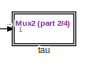
[diagram: root canvas - part 1/4, top right region]
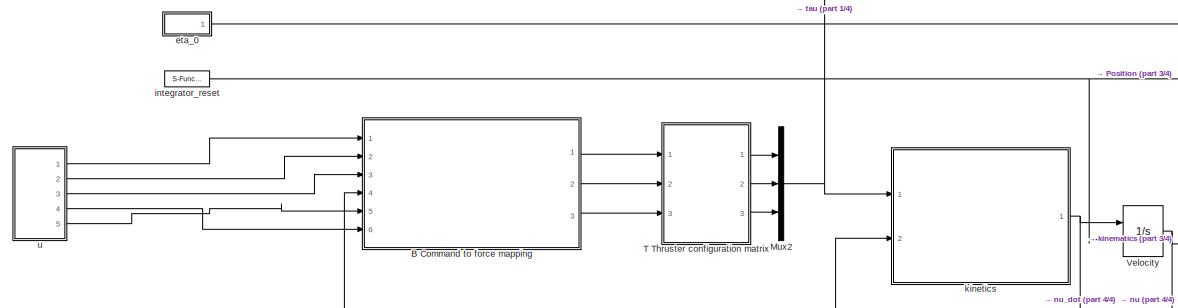
[diagram: root canvas - part 2/4, middle left region]
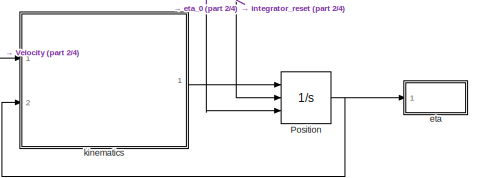
[diagram: root canvas - part 3/4, middle right region]
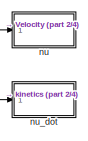
[diagram: root canvas - part 4/4, bottom right region]
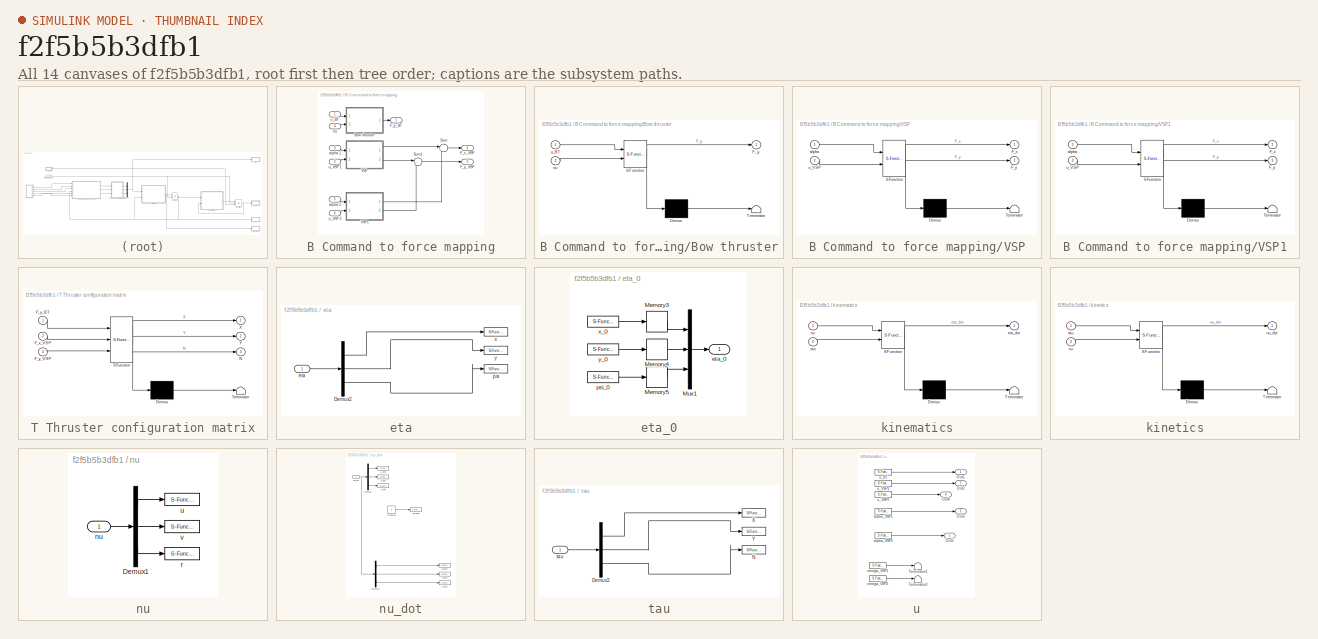
[diagram: thumbnail index - all 14 canvases of the model, root first then tree order]
MODEL slx_f2f5b5b3dfb1
KIND model
CONFIG AbsTol = auto
CONFIG EnableMultiTasking = on
CONFIG FixedStep = 0.01
CONFIG MaxStep = auto
CONFIG MinStep = auto
CONFIG RelTol = 1e-3
CONFIG SampleTimeConstraint = Unconstrained
CONFIG Solver = ode4
CONFIG SolverName = ode4
CONFIG StartTime = 0.0
CONFIG StopTime = inf
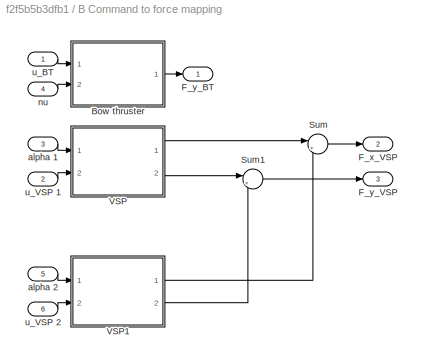
BLOCK [SubSystem] B Command to force mapping
  Ports = [6, 3]
  RequestExecContextInheritance = off
  Variant = off
BLOCK [SubSystem] B Command to force mapping/Bow thruster
  ErrorFcn = Stateflow.Translate.translate
  PermitHierarchicalResolution = ExplicitOnly
  Ports = [2, 1]
  RequestExecContextInheritance = off
  SFBlockType = MATLAB Function
  TreatAsAtomicUnit = on
  Variant = off
BLOCK [Demux] B Command to force mapping/Bow thruster/ Demux 
  Outputs = 1
  Ports = [1, 1]
BLOCK [S-Function] B Command to force mapping/Bow thruster/ SFunction 
  EnableBusSupport = on
  FunctionName = sf_sfun
  PortCounts = [2 2]
  Ports = [2, 2]
  SFcnIsStateOwnerBlock = off
  SFunctionDeploymentMode = off
  Tag = Stateflow S-Function CSE1_HIL_u 4
BLOCK [Terminator] B Command to force mapping/Bow thruster/ Terminator 
BLOCK [Outport] B Command to force mapping/Bow thruster/F_y
  IconDisplay = Port number
BLOCK [Inport] B Command to force mapping/Bow thruster/nu
  IconDisplay = Port number
  Port = 2
BLOCK [Inport] B Command to force mapping/Bow thruster/u_BT
  IconDisplay = Port number
BLOCK [Outport] B Command to force mapping/F_x_VSP
  IconDisplay = Port number
  Port = 2
BLOCK [Outport] B Command to force mapping/F_y_BT
  IconDisplay = Port number
BLOCK [Outport] B Command to force mapping/F_y_VSP
  IconDisplay = Port number
  Port = 3
BLOCK [Sum] B Command to force mapping/Sum
  IconShape = round
  InputSameDT = off
  Inputs = |++
  OutDataTypeStr = Inherit: Inherit via internal rule
  Ports = [2, 1]
  SaturateOnIntegerOverflow = off
BLOCK [Sum] B Command to force mapping/Sum1
  IconShape = round
  InputSameDT = off
  Inputs = |++
  OutDataTypeStr = Inherit: Inherit via internal rule
  Ports = [2, 1]
  SaturateOnIntegerOverflow = off
BLOCK [SubSystem] B Command to force mapping/VSP
  ErrorFcn = Stateflow.Translate.translate
  PermitHierarchicalResolution = ExplicitOnly
  Ports = [2, 2]
  RequestExecContextInheritance = off
  SFBlockType = MATLAB Function
  TreatAsAtomicUnit = on
  Variant = off
BLOCK [Demux] B Command to force mapping/VSP/ Demux 
  Outputs = 1
  Ports = [1, 1]
BLOCK [S-Function] B Command to force mapping/VSP/ SFunction 
  EnableBusSupport = on
  FunctionName = sf_sfun
  PortCounts = [2 3]
  Ports = [2, 3]
  SFcnIsStateOwnerBlock = off
  SFunctionDeploymentMode = off
  Tag = Stateflow S-Function CSE1_HIL_u 5
BLOCK [Terminator] B Command to force mapping/VSP/ Terminator 
BLOCK [Outport] B Command to force mapping/VSP/F_x
  IconDisplay = Port number
BLOCK [Outport] B Command to force mapping/VSP/F_y
  IconDisplay = Port number
  Port = 2
BLOCK [Inport] B Command to force mapping/VSP/alpha
  IconDisplay = Port number
BLOCK [Inport] B Command to force mapping/VSP/u_VSP
  IconDisplay = Port number
  Port = 2
BLOCK [SubSystem] B Command to force mapping/VSP1
  ErrorFcn = Stateflow.Translate.translate
  PermitHierarchicalResolution = ExplicitOnly
  Ports = [2, 2]
  RequestExecContextInheritance = off
  SFBlockType = MATLAB Function
  TreatAsAtomicUnit = on
  Variant = off
BLOCK [Demux] B Command to force mapping/VSP1/ Demux 
  Outputs = 1
  Ports = [1, 1]
BLOCK [S-Function] B Command to force mapping/VSP1/ SFunction 
  EnableBusSupport = on
  FunctionName = sf_sfun
  PortCounts = [2 3]
  Ports = [2, 3]
  SFcnIsStateOwnerBlock = off
  SFunctionDeploymentMode = off
  Tag = Stateflow S-Function CSE1_HIL_u 6
BLOCK [Terminator] B Command to force mapping/VSP1/ Terminator 
BLOCK [Outport] B Command to force mapping/VSP1/F_x
  IconDisplay = Port number
BLOCK [Outport] B Command to force mapping/VSP1/F_y
  IconDisplay = Port number
  Port = 2
BLOCK [Inport] B Command to force mapping/VSP1/alpha
  IconDisplay = Port number
BLOCK [Inport] B Command to force mapping/VSP1/u_VSP
  IconDisplay = Port number
  Port = 2
BLOCK [Inport] B Command to force mapping/alpha 1
  IconDisplay = Port number
  Port = 3
BLOCK [Inport] B Command to force mapping/alpha 2
  IconDisplay = Port number
  Port = 5
BLOCK [Inport] B Command to force mapping/nu
  IconDisplay = Port number
  Port = 4
BLOCK [Inport] B Command to force mapping/u_BT
  IconDisplay = Port number
BLOCK [Inport] B Command to force mapping/u_VSP 1
  IconDisplay = Port number
  Port = 2
BLOCK [Inport] B Command to force mapping/u_VSP 2
  IconDisplay = Port number
  Port = 6
BLOCK [Mux] Mux2
  DisplayOption = bar
  Inputs = 3
  Ports = [3, 1]
BLOCK [Integrator] Position
  ExternalReset = either
  InitialCondition = [0 0 0]'
  InitialConditionSource = external
  Ports = [3, 1]
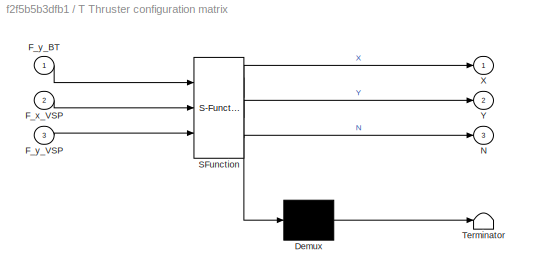
BLOCK [SubSystem] T Thruster configuration matrix
  ErrorFcn = Stateflow.Translate.translate
  PermitHierarchicalResolution = ExplicitOnly
  Ports = [3, 3]
  RequestExecContextInheritance = off
  SFBlockType = MATLAB Function
  TreatAsAtomicUnit = on
  Variant = off
BLOCK [Demux] T Thruster configuration matrix/ Demux 
  Outputs = 1
  Ports = [1, 1]
BLOCK [S-Function] T Thruster configuration matrix/ SFunction 
  EnableBusSupport = on
  FunctionName = sf_sfun
  PortCounts = [3 4]
  Ports = [3, 4]
  SFcnIsStateOwnerBlock = off
  SFunctionDeploymentMode = off
  Tag = Stateflow S-Function CSE1_HIL_u 3
BLOCK [Terminator] T Thruster configuration matrix/ Terminator 
BLOCK [Inport] T Thruster configuration matrix/F_x_VSP
  IconDisplay = Port number
  Port = 2
BLOCK [Inport] T Thruster configuration matrix/F_y_BT
  IconDisplay = Port number
BLOCK [Inport] T Thruster configuration matrix/F_y_VSP
  IconDisplay = Port number
  Port = 3
BLOCK [Outport] T Thruster configuration matrix/N
  IconDisplay = Port number
  Port = 3
BLOCK [Outport] T Thruster configuration matrix/X
  IconDisplay = Port number
BLOCK [Outport] T Thruster configuration matrix/Y
  IconDisplay = Port number
  Port = 2
BLOCK [Integrator] Velocity
  ExternalReset = either
  InitialCondition = [0 0 0]'
  Ports = [2, 1]
BLOCK [SubSystem] eta
  Ports = [1]
  RequestExecContextInheritance = off
  Variant = off
BLOCK [Demux] eta/Demux2
  DisplayOption = bar
  Outputs = 3
  Ports = [1, 3]
BLOCK [Inport] eta/eta
  IconDisplay = Port number
BLOCK [S-Function] eta/psi
  CopyFcn = NIVeriStand_MDL_functions('', 'IO_copy');
  DeleteFcn = NIVeriStand_MDL_functions('', 'IO_delete');
  EnableBusSupport = off
  FunctionName = NIVeriStandIO
  MoveFcn = set_param(gcb, 'Mask', 'on');
  Parameters = width dtype portnum stime stype btype
  Ports = [1]
  Priority = 3
  SFcnIsStateOwnerBlock = off
  SFunctionDeploymentMode = off
BLOCK [S-Function] eta/x
  CopyFcn = NIVeriStand_MDL_functions('', 'IO_copy');
  DeleteFcn = NIVeriStand_MDL_functions('', 'IO_delete');
  EnableBusSupport = off
  FunctionName = NIVeriStandIO
  MoveFcn = set_param(gcb, 'Mask', 'on');
  Parameters = width dtype portnum stime stype btype
  Ports = [1]
  Priority = 1
  SFcnIsStateOwnerBlock = off
  SFunctionDeploymentMode = off
BLOCK [S-Function] eta/y
  CopyFcn = NIVeriStand_MDL_functions('', 'IO_copy');
  DeleteFcn = NIVeriStand_MDL_functions('', 'IO_delete');
  EnableBusSupport = off
  FunctionName = NIVeriStandIO
  MoveFcn = set_param(gcb, 'Mask', 'on');
  Parameters = width dtype portnum stime stype btype
  Ports = [1]
  Priority = 2
  SFcnIsStateOwnerBlock = off
  SFunctionDeploymentMode = off
BLOCK [SubSystem] eta_0
  Ports = [0, 1]
  RequestExecContextInheritance = off
  Variant = off
BLOCK [Memory] eta_0/Memory3
BLOCK [Memory] eta_0/Memory4
BLOCK [Memory] eta_0/Memory5
BLOCK [Mux] eta_0/Mux1
  DisplayOption = bar
  Inputs = 3
  Ports = [3, 1]
BLOCK [Outport] eta_0/eta_0
  IconDisplay = Port number
BLOCK [S-Function] eta_0/psi_0
  CopyFcn = NIVeriStand_MDL_functions('', 'IO_copy');
  DeleteFcn = NIVeriStand_MDL_functions('', 'IO_delete');
  EnableBusSupport = off
  FunctionName = NIVeriStandIO
  MoveFcn = set_param(gcb, 'Mask', 'on');
  Parameters = width dtype portnum stime stype btype
  Ports = [0, 1]
  Priority = 1
  SFcnIsStateOwnerBlock = off
  SFunctionDeploymentMode = off
BLOCK [S-Function] eta_0/x_0
  CopyFcn = NIVeriStand_MDL_functions('', 'IO_copy');
  DeleteFcn = NIVeriStand_MDL_functions('', 'IO_delete');
  EnableBusSupport = off
  FunctionName = NIVeriStandIO
  MoveFcn = set_param(gcb, 'Mask', 'on');
  Parameters = width dtype portnum stime stype btype
  Ports = [0, 1]
  Priority = 2
  SFcnIsStateOwnerBlock = off
  SFunctionDeploymentMode = off
BLOCK [S-Function] eta_0/y_0
  CopyFcn = NIVeriStand_MDL_functions('', 'IO_copy');
  DeleteFcn = NIVeriStand_MDL_functions('', 'IO_delete');
  EnableBusSupport = off
  FunctionName = NIVeriStandIO
  MoveFcn = set_param(gcb, 'Mask', 'on');
  Parameters = width dtype portnum stime stype btype
  Ports = [0, 1]
  Priority = 3
  SFcnIsStateOwnerBlock = off
  SFunctionDeploymentMode = off
BLOCK [S-Function] integrator_reset
  CopyFcn = NIVeriStand_MDL_functions('', 'IO_copy');
  DeleteFcn = NIVeriStand_MDL_functions('', 'IO_delete');
  EnableBusSupport = off
  FunctionName = NIVeriStandIO
  MoveFcn = set_param(gcb, 'Mask', 'on');
  Parameters = width dtype portnum stime stype btype
  Ports = [0, 1]
  Priority = 1
  SFcnIsStateOwnerBlock = off
  SFunctionDeploymentMode = off
BLOCK [SubSystem] kinematics
  ErrorFcn = Stateflow.Translate.translate
  PermitHierarchicalResolution = ExplicitOnly
  Ports = [2, 1]
  RequestExecContextInheritance = off
  SFBlockType = MATLAB Function
  TreatAsAtomicUnit = on
  Variant = off
BLOCK [Demux] kinematics/ Demux 
  Outputs = 1
  Ports = [1, 1]
BLOCK [S-Function] kinematics/ SFunction 
  EnableBusSupport = on
  FunctionName = sf_sfun
  PortCounts = [2 2]
  Ports = [2, 2]
  SFcnIsStateOwnerBlock = off
  SFunctionDeploymentMode = off
  Tag = Stateflow S-Function CSE1_HIL_u 1
BLOCK [Terminator] kinematics/ Terminator 
BLOCK [Inport] kinematics/eta
  IconDisplay = Port number
  Port = 2
BLOCK [Outport] kinematics/eta_dot
  IconDisplay = Port number
BLOCK [Inport] kinematics/nu
  IconDisplay = Port number
BLOCK [SubSystem] kinetics
  ErrorFcn = Stateflow.Translate.translate
  PermitHierarchicalResolution = ExplicitOnly
  Ports = [2, 1]
  RequestExecContextInheritance = off
  SFBlockType = MATLAB Function
  TreatAsAtomicUnit = on
  Variant = off
BLOCK [Demux] kinetics/ Demux 
  Outputs = 1
  Ports = [1, 1]
BLOCK [S-Function] kinetics/ SFunction 
  EnableBusSupport = on
  FunctionName = sf_sfun
  PortCounts = [2 2]
  Ports = [2, 2]
  SFcnIsStateOwnerBlock = off
  SFunctionDeploymentMode = off
  Tag = Stateflow S-Function CSE1_HIL_u 2
BLOCK [Terminator] kinetics/ Terminator 
BLOCK [Inport] kinetics/nu
  IconDisplay = Port number
  Port = 2
BLOCK [Outport] kinetics/nu_dot
  IconDisplay = Port number
BLOCK [Inport] kinetics/tau
  IconDisplay = Port number
BLOCK [SubSystem] nu
  Ports = [1]
  RequestExecContextInheritance = off
  Variant = off
BLOCK [Demux] nu/Demux1
  DisplayOption = bar
  Outputs = 3
  Ports = [1, 3]
BLOCK [Inport] nu/nu
  IconDisplay = Port number
BLOCK [S-Function] nu/r
  CopyFcn = NIVeriStand_MDL_functions('', 'IO_copy');
  DeleteFcn = NIVeriStand_MDL_functions('', 'IO_delete');
  EnableBusSupport = off
  FunctionName = NIVeriStandIO
  MoveFcn = set_param(gcb, 'Mask', 'on');
  Parameters = width dtype portnum stime stype btype
  Ports = [1]
  Priority = 1
  SFcnIsStateOwnerBlock = off
  SFunctionDeploymentMode = off
BLOCK [S-Function] nu/u
  CopyFcn = NIVeriStand_MDL_functions('', 'IO_copy');
  DeleteFcn = NIVeriStand_MDL_functions('', 'IO_delete');
  EnableBusSupport = off
  FunctionName = NIVeriStandIO
  MoveFcn = set_param(gcb, 'Mask', 'on');
  Parameters = width dtype portnum stime stype btype
  Ports = [1]
  Priority = 2
  SFcnIsStateOwnerBlock = off
  SFunctionDeploymentMode = off
BLOCK [S-Function] nu/v
  CopyFcn = NIVeriStand_MDL_functions('', 'IO_copy');
  DeleteFcn = NIVeriStand_MDL_functions('', 'IO_delete');
  EnableBusSupport = off
  FunctionName = NIVeriStandIO
  MoveFcn = set_param(gcb, 'Mask', 'on');
  Parameters = width dtype portnum stime stype btype
  Ports = [1]
  Priority = 3
  SFcnIsStateOwnerBlock = off
  SFunctionDeploymentMode = off
BLOCK [SubSystem] nu_dot
  Ports = [1]
  RequestExecContextInheritance = off
  Variant = off
BLOCK [Constant] nu_dot/Constant
  Value = 0
BLOCK [Demux] nu_dot/Demux1
  DisplayOption = bar
  Outputs = 3
  Ports = [1, 3]
BLOCK [Demux] nu_dot/Demux2
  DisplayOption = bar
  Outputs = 3
  Ports = [1, 3]
BLOCK [Inport] nu_dot/nu_dot
  IconDisplay = Port number
BLOCK [S-Function] nu_dot/r_dot
  CopyFcn = NIVeriStand_MDL_functions('', 'IO_copy');
  DeleteFcn = NIVeriStand_MDL_functions('', 'IO_delete');
  EnableBusSupport = off
  FunctionName = NIVeriStandIO
  MoveFcn = set_param(gcb, 'Mask', 'on');
  Parameters = width dtype portnum stime stype btype
  Ports = [1]
  Priority = 1
  SFcnIsStateOwnerBlock = off
  SFunctionDeploymentMode = off
BLOCK [S-Function] nu_dot/r_dot1
  CopyFcn = NIVeriStand_MDL_functions('', 'IO_copy');
  DeleteFcn = NIVeriStand_MDL_functions('', 'IO_delete');
  EnableBusSupport = off
  FunctionName = NIVeriStandIO
  MoveFcn = set_param(gcb, 'Mask', 'on');
  Parameters = width dtype portnum stime stype btype
  Ports = [1]
  Priority = 5
  SFcnIsStateOwnerBlock = off
  SFunctionDeploymentMode = off
BLOCK [S-Function] nu_dot/u_dot
  CopyFcn = NIVeriStand_MDL_functions('', 'IO_copy');
  DeleteFcn = NIVeriStand_MDL_functions('', 'IO_delete');
  EnableBusSupport = off
  FunctionName = NIVeriStandIO
  MoveFcn = set_param(gcb, 'Mask', 'on');
  Parameters = width dtype portnum stime stype btype
  Ports = [1]
  Priority = 2
  SFcnIsStateOwnerBlock = off
  SFunctionDeploymentMode = off
BLOCK [S-Function] nu_dot/u_dot1
  CopyFcn = NIVeriStand_MDL_functions('', 'IO_copy');
  DeleteFcn = NIVeriStand_MDL_functions('', 'IO_delete');
  EnableBusSupport = off
  FunctionName = NIVeriStandIO
  MoveFcn = set_param(gcb, 'Mask', 'on');
  Parameters = width dtype portnum stime stype btype
  Ports = [1]
  Priority = 6
  SFcnIsStateOwnerBlock = off
  SFunctionDeploymentMode = off
BLOCK [S-Function] nu_dot/v_dot
  CopyFcn = NIVeriStand_MDL_functions('', 'IO_copy');
  DeleteFcn = NIVeriStand_MDL_functions('', 'IO_delete');
  EnableBusSupport = off
  FunctionName = NIVeriStandIO
  MoveFcn = set_param(gcb, 'Mask', 'on');
  Parameters = width dtype portnum stime stype btype
  Ports = [1]
  Priority = 3
  SFcnIsStateOwnerBlock = off
  SFunctionDeploymentMode = off
BLOCK [S-Function] nu_dot/v_dot1
  CopyFcn = NIVeriStand_MDL_functions('', 'IO_copy');
  DeleteFcn = NIVeriStand_MDL_functions('', 'IO_delete');
  EnableBusSupport = off
  FunctionName = NIVeriStandIO
  MoveFcn = set_param(gcb, 'Mask', 'on');
  Parameters = width dtype portnum stime stype btype
  Ports = [1]
  Priority = 7
  SFcnIsStateOwnerBlock = off
  SFunctionDeploymentMode = off
BLOCK [S-Function] nu_dot/zeroout
  CopyFcn = NIVeriStand_MDL_functions('', 'IO_copy');
  DeleteFcn = NIVeriStand_MDL_functions('', 'IO_delete');
  EnableBusSupport = off
  FunctionName = NIVeriStandIO
  MoveFcn = set_param(gcb, 'Mask', 'on');
  Parameters = width dtype portnum stime stype btype
  Ports = [1]
  Priority = 4
  SFcnIsStateOwnerBlock = off
  SFunctionDeploymentMode = off
BLOCK [SubSystem] tau
  Ports = [1]
  RequestExecContextInheritance = off
  Variant = off
BLOCK [Demux] tau/Demux2
  DisplayOption = bar
  Outputs = 3
  Ports = [1, 3]
BLOCK [S-Function] tau/N
  CopyFcn = NIVeriStand_MDL_functions('', 'IO_copy');
  DeleteFcn = NIVeriStand_MDL_functions('', 'IO_delete');
  EnableBusSupport = off
  FunctionName = NIVeriStandIO
  MoveFcn = set_param(gcb, 'Mask', 'on');
  Parameters = width dtype portnum stime stype btype
  Ports = [1]
  Priority = 3
  SFcnIsStateOwnerBlock = off
  SFunctionDeploymentMode = off
BLOCK [S-Function] tau/X
  CopyFcn = NIVeriStand_MDL_functions('', 'IO_copy');
  DeleteFcn = NIVeriStand_MDL_functions('', 'IO_delete');
  EnableBusSupport = off
  FunctionName = NIVeriStandIO
  MoveFcn = set_param(gcb, 'Mask', 'on');
  Parameters = width dtype portnum stime stype btype
  Ports = [1]
  Priority = 1
  SFcnIsStateOwnerBlock = off
  SFunctionDeploymentMode = off
BLOCK [S-Function] tau/Y
  CopyFcn = NIVeriStand_MDL_functions('', 'IO_copy');
  DeleteFcn = NIVeriStand_MDL_functions('', 'IO_delete');
  EnableBusSupport = off
  FunctionName = NIVeriStandIO
  MoveFcn = set_param(gcb, 'Mask', 'on');
  Parameters = width dtype portnum stime stype btype
  Ports = [1]
  Priority = 2
  SFcnIsStateOwnerBlock = off
  SFunctionDeploymentMode = off
BLOCK [Inport] tau/tau
  IconDisplay = Port number
BLOCK [SubSystem] u
  Ports = [0, 5]
  RequestExecContextInheritance = off
  Variant = off
BLOCK [Outport] u/Out1
  IconDisplay = Port number
BLOCK [Outport] u/Out2
  IconDisplay = Port number
  Port = 2
BLOCK [Outport] u/Out3
  IconDisplay = Port number
  Port = 3
BLOCK [Outport] u/Out4
  IconDisplay = Port number
  Port = 4
BLOCK [Outport] u/Out5
  IconDisplay = Port number
  Port = 5
BLOCK [Terminator] u/Terminator1
BLOCK [Terminator] u/Terminator2
BLOCK [S-Function] u/alpha_VSP1
  CopyFcn = NIVeriStand_MDL_functions('', 'IO_copy');
  DeleteFcn = NIVeriStand_MDL_functions('', 'IO_delete');
  EnableBusSupport = off
  FunctionName = NIVeriStandIO
  MoveFcn = set_param(gcb, 'Mask', 'on');
  Parameters = width dtype portnum stime stype btype
  Ports = [0, 1]
  Priority = 5
  SFcnIsStateOwnerBlock = off
  SFunctionDeploymentMode = off
BLOCK [S-Function] u/alpha_VSP2
  CopyFcn = NIVeriStand_MDL_functions('', 'IO_copy');
  DeleteFcn = NIVeriStand_MDL_functions('', 'IO_delete');
  EnableBusSupport = off
  FunctionName = NIVeriStandIO
  MoveFcn = set_param(gcb, 'Mask', 'on');
  Parameters = width dtype portnum stime stype btype
  Ports = [0, 1]
  Priority = 6
  SFcnIsStateOwnerBlock = off
  SFunctionDeploymentMode = off
BLOCK [S-Function] u/omega_VSP1
  CopyFcn = NIVeriStand_MDL_functions('', 'IO_copy');
  DeleteFcn = NIVeriStand_MDL_functions('', 'IO_delete');
  EnableBusSupport = off
  FunctionName = NIVeriStandIO
  MoveFcn = set_param(gcb, 'Mask', 'on');
  Parameters = width dtype portnum stime stype btype
  Ports = [0, 1]
  Priority = 7
  SFcnIsStateOwnerBlock = off
  SFunctionDeploymentMode = off
BLOCK [S-Function] u/omega_VSP2
  CopyFcn = NIVeriStand_MDL_functions('', 'IO_copy');
  DeleteFcn = NIVeriStand_MDL_functions('', 'IO_delete');
  EnableBusSupport = off
  FunctionName = NIVeriStandIO
  MoveFcn = set_param(gcb, 'Mask', 'on');
  Parameters = width dtype portnum stime stype btype
  Ports = [0, 1]
  Priority = 8
  SFcnIsStateOwnerBlock = off
  SFunctionDeploymentMode = off
BLOCK [S-Function] u/u_BT
  CopyFcn = NIVeriStand_MDL_functions('', 'IO_copy');
  DeleteFcn = NIVeriStand_MDL_functions('', 'IO_delete');
  EnableBusSupport = off
  FunctionName = NIVeriStandIO
  MoveFcn = set_param(gcb, 'Mask', 'on');
  Parameters = width dtype portnum stime stype btype
  Ports = [0, 1]
  Priority = 2
  SFcnIsStateOwnerBlock = off
  SFunctionDeploymentMode = off
BLOCK [S-Function] u/u_VSP1
  CopyFcn = NIVeriStand_MDL_functions('', 'IO_copy');
  DeleteFcn = NIVeriStand_MDL_functions('', 'IO_delete');
  EnableBusSupport = off
  FunctionName = NIVeriStandIO
  MoveFcn = set_param(gcb, 'Mask', 'on');
  Parameters = width dtype portnum stime stype btype
  Ports = [0, 1]
  Priority = 3
  SFcnIsStateOwnerBlock = off
  SFunctionDeploymentMode = off
BLOCK [S-Function] u/u_VSP2
  CopyFcn = NIVeriStand_MDL_functions('', 'IO_copy');
  DeleteFcn = NIVeriStand_MDL_functions('', 'IO_delete');
  EnableBusSupport = off
  FunctionName = NIVeriStandIO
  MoveFcn = set_param(gcb, 'Mask', 'on');
  Parameters = width dtype portnum stime stype btype
  Ports = [0, 1]
  Priority = 4
  SFcnIsStateOwnerBlock = off
  SFunctionDeploymentMode = off
LINE B Command to force mapping/Bow thruster:1 -> B Command to force mapping/F_y_BT:1
LINE B Command to force mapping/Sum1:1 -> B Command to force mapping/F_y_VSP:1
LINE B Command to force mapping/Sum:1 -> B Command to force mapping/F_x_VSP:1
LINE B Command to force mapping/VSP1:1 -> B Command to force mapping/Sum:2
LINE B Command to force mapping/VSP1:2 -> B Command to force mapping/Sum1:2
LINE B Command to force mapping/VSP:1 -> B Command to force mapping/Sum:1
LINE B Command to force mapping/VSP:2 -> B Command to force mapping/Sum1:1
LINE B Command to force mapping/alpha 1:1 -> B Command to force mapping/VSP:1
LINE B Command to force mapping/alpha 2:1 -> B Command to force mapping/VSP1:1
LINE B Command to force mapping/nu:1 -> B Command to force mapping/Bow thruster:2
LINE B Command to force mapping/u_BT:1 -> B Command to force mapping/Bow thruster:1
LINE B Command to force mapping/u_VSP 1:1 -> B Command to force mapping/VSP:2
LINE B Command to force mapping/u_VSP 2:1 -> B Command to force mapping/VSP1:2
LINE B Command to force mapping:1 -> T Thruster configuration matrix:1
LINE B Command to force mapping:2 -> T Thruster configuration matrix:2
LINE B Command to force mapping:3 -> T Thruster configuration matrix:3
NET Mux2:1 -> kinetics:1, tau:1
NET Position:1 -> eta:1, kinematics:2
LINE T Thruster configuration matrix:1 -> Mux2:1
LINE T Thruster configuration matrix:2 -> Mux2:2
LINE T Thruster configuration matrix:3 -> Mux2:3
NET Velocity:1 -> B Command to force mapping:4, kinematics:1, kinetics:2, nu:1
LINE eta/Demux2:1 -> eta/x:1
LINE eta/Demux2:2 -> eta/y:1
LINE eta/Demux2:3 -> eta/psi:1
LINE eta/eta:1 -> eta/Demux2:1
LINE eta_0/Memory3:1 -> eta_0/Mux1:1
LINE eta_0/Memory4:1 -> eta_0/Mux1:2
LINE eta_0/Memory5:1 -> eta_0/Mux1:3
LINE eta_0/Mux1:1 -> eta_0/eta_0:1
LINE eta_0/psi_0:1 -> eta_0/Memory5:1
LINE eta_0/x_0:1 -> eta_0/Memory3:1
LINE eta_0/y_0:1 -> eta_0/Memory4:1
LINE eta_0:1 -> Position:3
NET integrator_reset:1 -> Position:2, Velocity:2
LINE kinematics:1 -> Position:1
NET kinetics:1 -> Velocity:1, nu_dot:1
LINE nu/Demux1:1 -> nu/u:1
LINE nu/Demux1:2 -> nu/v:1
LINE nu/Demux1:3 -> nu/r:1
LINE nu/nu:1 -> nu/Demux1:1
LINE nu_dot/Constant:1 -> nu_dot/zeroout:1
LINE nu_dot/Demux1:1 -> nu_dot/u_dot:1
LINE nu_dot/Demux1:2 -> nu_dot/v_dot:1
LINE nu_dot/Demux1:3 -> nu_dot/r_dot:1
LINE nu_dot/Demux2:1 -> nu_dot/u_dot1:1
LINE nu_dot/Demux2:2 -> nu_dot/v_dot1:1
LINE nu_dot/Demux2:3 -> nu_dot/r_dot1:1
NET nu_dot/nu_dot:1 -> nu_dot/Demux1:1, nu_dot/Demux2:1
LINE tau/Demux2:1 -> tau/X:1
LINE tau/Demux2:2 -> tau/Y:1
LINE tau/Demux2:3 -> tau/N:1
LINE tau/tau:1 -> tau/Demux2:1
LINE u/alpha_VSP1:1 -> u/Out3:1
LINE u/alpha_VSP2:1 -> u/Out5:1
LINE u/omega_VSP1:1 -> u/Terminator1:1
LINE u/omega_VSP2:1 -> u/Terminator2:1
LINE u/u_BT:1 -> u/Out1:1
LINE u/u_VSP1:1 -> u/Out2:1
LINE u/u_VSP2:1 -> u/Out4:1
LINE u:1 -> B Command to force mapping:1
LINE u:2 -> B Command to force mapping:2
LINE u:3 -> B Command to force mapping:3
LINE u:4 -> B Command to force mapping:6
LINE u:5 -> B Command to force mapping:5
note: NET lines group one-source signal fan-out (src -> all destinations, sorted); 1:1 wires keep LINE
CHART kinematics states=1 transitions=1
  STATE_LABEL 'eML_blk_kernel()'
  STATE_LABEL 'SCRIPT:\nfunction eta_dot = CSE1_eta_dot(nu,eta)\n\npsi = eta(3);\n\nJ = [cos(psi) -sin(psi) 0\n     sin(psi) cos(psi)  0\n     0        0         1];\n\neta_dot = J*nu;'
CHART kinetics states=1 transitions=1
  STATE_LABEL 'eML_blk_kernel()'
  STATE_LABEL 'SCRIPT:\nfunction nu_dot = CSE1_nu_dot(tau,nu)\n\nu   = nu(1);\nv   = nu(2);\nr   = nu(3);\n\ntau = [tau(1);tau(2);tau(3)];\n%% MATRICES \n%changed m from 14.79 to 14.11\n\nm    = 14.11;   I_z  =  1.7600;   x_g = 0.0375;       % x_g  =  0.0460; % Table B.1\n\n%% Added mass\n%changed Y_vd from -1.0 to -10.0\nX_ud  =     -2.0;\t\t\t\t\t\t\t\t\t\t\t% Table B.1\n\t\t\t\t\tY_vd =      -10.0;\tN_vd =    -0.0;\t\t% Table B.1\n\t\t\t\t\tY_rd =  ...<+1548ch>'
CHART T
Thruster configuration matrix states=1 transitions=1
  STATE_LABEL 'eML_blk_kernel()'
  STATE_LABEL 'SCRIPT:\nfunction [X, Y, N] = fcn(F_y_BT, F_x_VSP, F_y_VSP)\n%#codegen\n\nL_VSP = -0.4575;\nL_BT  = 0.3875;\n\nu = [F_x_VSP\n     F_y_VSP\n     F_y_BT ];\n\nT = [1 0     0\n     0 1     1\n     0 L_VSP L_BT];\n\ntau = T*u; \n\nX = tau(1);\nY = tau(2);\nN = tau(3);\n'
CHART B
Command to force mapping/Bow thruster states=1 transitions=1
  STATE_LABEL 'eML_blk_kernel()'
  STATE_LABEL 'SCRIPT:\nfunction F_y = fcn(u_BT,nu)\n%#codegen\nu = nu(1);\n% Thruster characteristics\nif u_BT > 0.0879\n    a =       2.515;\n    b =      0.1174;\n    c =      -2.807;\n    d =      -1.131;\n    y0 = a*exp(b*u_BT) + c*exp(d*u_BT);\nelseif u_BT < -0.059\n    a =        -548;\n    b =       0.193;\n    c =       548.2;\n    d =      0.1992;\n    y0 = a*exp(b*u_BT) + c*exp(d*u_BT);\nelse\n    y0 = 0;\nend\n% Thruste...<+143ch>'
CHART B
Command to force mapping/VSP states=1 transitions=1
  STATE_LABEL 'eML_blk_kernel()'
  STATE_LABEL 'SCRIPT:\nfunction [ F_x , F_y ] = fcn(alpha,u_VSP)\n%#codegen\n% Calculating the force in x-direction\na1 =       1.107  ;\nb1 =       1.001  ;\nc1 =       1.564  ;\na2 =      0.3471 ;\nb2 =      0.1397 ;\nc2 =      -1.599  ;\na3 =      0.1558 ;\nb3 =       1.993  ;\nc3 =       1.886  ;\na4 =      0.1599 ;\nb4 =       0.218  ;\nc4 =       1.513  ;\na5 =     0.08237 ;\nb5 =       2.986  ;\nc5 =      -1.601  ;\na6 =  ...<+931ch>'
CHART B
Command to force mapping/VSP1 states=1 transitions=1
  STATE_LABEL 'eML_blk_kernel()'
  STATE_LABEL 'SCRIPT:\nfunction [ F_x , F_y ] = fcn(alpha,u_VSP)\n%#codegen\n% Calculating the force in x-direction\na1 =       1.107  ;\nb1 =       1.001  ;\nc1 =       1.564  ;\na2 =      0.3471 ;\nb2 =      0.1397 ;\nc2 =      -1.599  ;\na3 =      0.1558 ;\nb3 =       1.993  ;\nc3 =       1.886  ;\na4 =      0.1599 ;\nb4 =       0.218  ;\nc4 =       1.513  ;\na5 =     0.08237 ;\nb5 =       2.986  ;\nc5 =      -1.601  ;\na6 =  ...<+931ch>'
